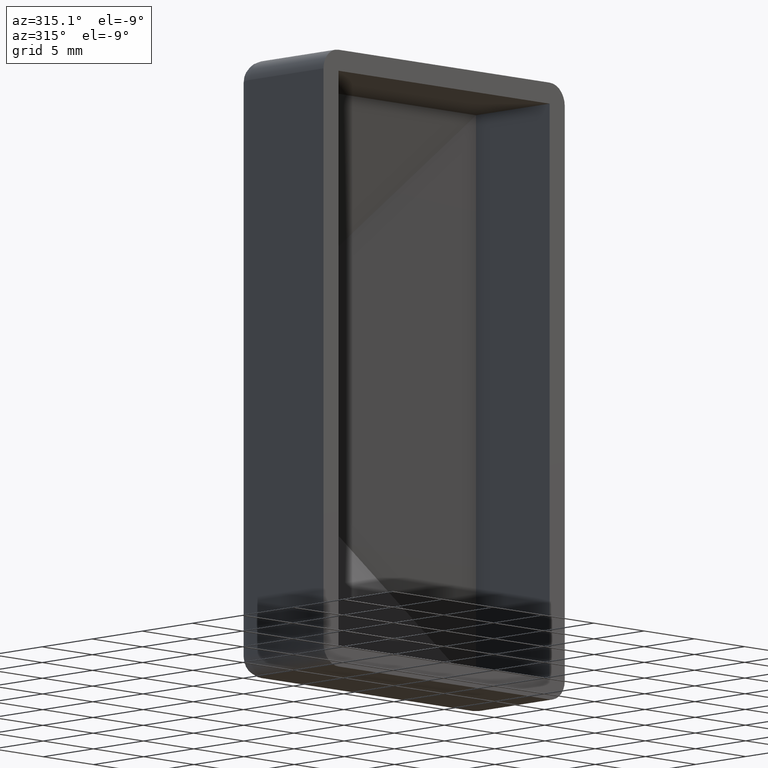
[diagram: clean part render]
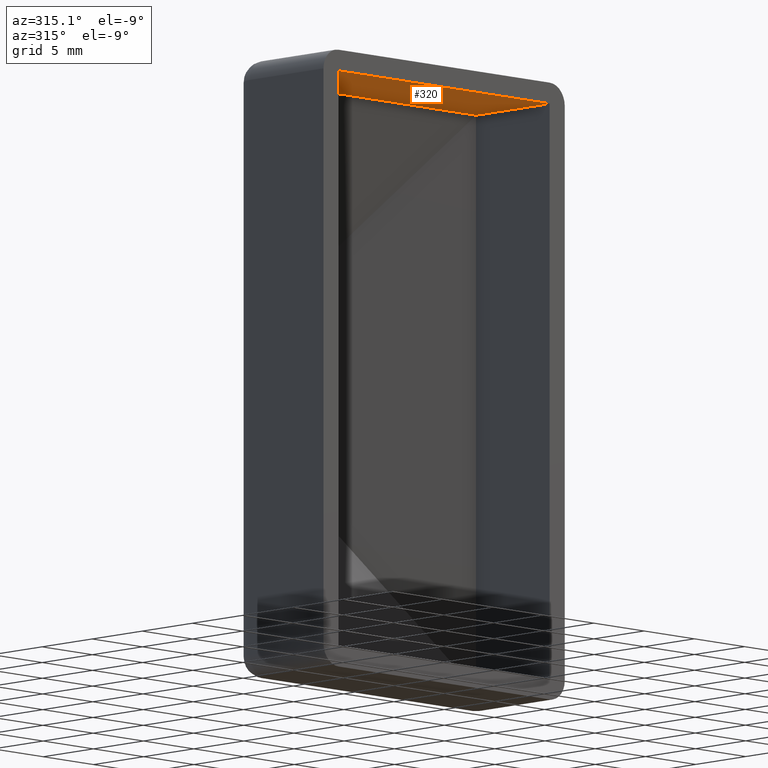
[diagram: same view with one face highlighted and labeled with its STEP entity id]
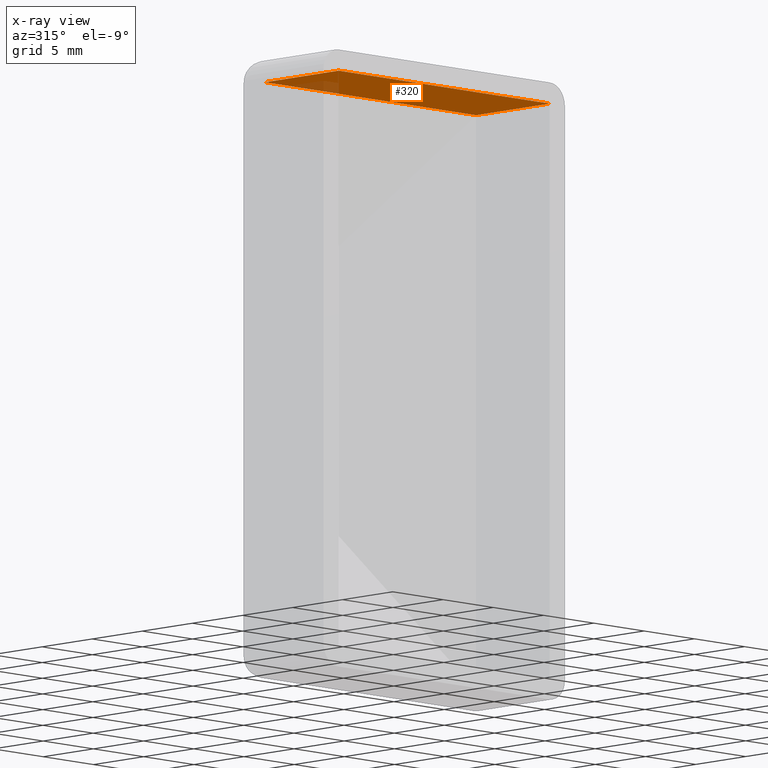
[diagram: x-ray of the same camera — body ghosted, the highlighted face saturated]
A machine part, auxiliary view. The second image highlights one B-rep face of the part: STEP entity #320.
The next image is the same camera in x-ray: the body ghosted, the highlighted face saturated — about 7% of this face is hidden behind the body in this view.
In plain terms, the highlighted planar face has unit normal (0, 0, -1).
Its self-contained STEP definition (entity closure, byte-faithful):
#86 = LINE ( 'NONE', #13620, #588 ) ;
#233 = EDGE_CURVE ( 'NONE', #3465, #5126, #9954, .T. ) ;
#234 = EDGE_LOOP ( 'NONE', ( #8360, #14140, #1478, #6485 ) ) ;
#320 = ADVANCED_FACE ( 'NONE', ( #5145 ), #9722, .T. ) ;
#588 = VECTOR ( 'NONE', #12452, 1000.000000000000000 ) ;
#870 = EDGE_CURVE ( 'NONE', #4273, #3465, #13061, .T. ) ;
#1114 = AXIS2_PLACEMENT_3D ( 'NONE', #3314, #8793, #4423 ) ;
#1478 = ORIENTED_EDGE ( 'NONE', *, *, #870, .T. ) ;
#1702 = CARTESIAN_POINT ( 'NONE',  ( 10.50000000000000000, 30.00000000000000000, 20.49999999999999645 ) ) ;
#1928 = VERTEX_POINT ( 'NONE', #3443 ) ;
#1935 = DIRECTION ( 'NONE',  ( 0.000000000000000000, -1.000000000000000000, 0.000000000000000000 ) ) ;
#3008 = CARTESIAN_POINT ( 'NONE',  ( -12.00000000000000533, 7.350000000000011191, 20.49999999999999645 ) ) ;
#3276 = VECTOR ( 'NONE', #1935, 1000.000000000000000 ) ;
#3314 = CARTESIAN_POINT ( 'NONE',  ( -12.00000000000000000, 30.00000000000000000, 20.49999999999999645 ) ) ;
#3443 = CARTESIAN_POINT ( 'NONE',  ( -10.50000000000000000, 0.000000000000000000, 20.49999999999999645 ) ) ;
#3465 = VERTEX_POINT ( 'NONE', #12321 ) ;
#4273 = VERTEX_POINT ( 'NONE', #8368 ) ;
#4423 = DIRECTION ( 'NONE',  ( -1.000000000000000000, 0.000000000000000000, -0.000000000000000000 ) ) ;
#5126 = VERTEX_POINT ( 'NONE', #11930 ) ;
#5145 = FACE_OUTER_BOUND ( 'NONE', #234, .T. ) ;
#5934 = VECTOR ( 'NONE', #8430, 1000.000000000000000 ) ;
#6485 = ORIENTED_EDGE ( 'NONE', *, *, #233, .T. ) ;
#6980 = EDGE_CURVE ( 'NONE', #1928, #5126, #13319, .T. ) ;
#8360 = ORIENTED_EDGE ( 'NONE', *, *, #6980, .F. ) ;
#8368 = CARTESIAN_POINT ( 'NONE',  ( -10.49999999999999467, 7.350000000000009415, 20.50000000000000000 ) ) ;
#8381 = CARTESIAN_POINT ( 'NONE',  ( -12.00000000000000000, 0.000000000000000000, 20.49999999999999645 ) ) ;
#8430 = DIRECTION ( 'NONE',  ( 1.000000000000000000, -0.000000000000000000, 0.000000000000000000 ) ) ;
#8793 = DIRECTION ( 'NONE',  ( 0.000000000000000000, 0.000000000000000000, -1.000000000000000000 ) ) ;
#9722 = PLANE ( 'NONE',  #1114 ) ;
#9954 = LINE ( 'NONE', #1702, #3276 ) ;
#10727 = DIRECTION ( 'NONE',  ( 1.000000000000000000, 0.000000000000000000, 0.000000000000000000 ) ) ;
#11239 = EDGE_CURVE ( 'NONE', #4273, #1928, #86, .T. ) ;
#11930 = CARTESIAN_POINT ( 'NONE',  ( 10.50000000000000000, 0.000000000000000000, 20.49999999999999645 ) ) ;
#12321 = CARTESIAN_POINT ( 'NONE',  ( 10.49999999999999645, 7.350000000000009415, 20.50000000000000355 ) ) ;
#12452 = DIRECTION ( 'NONE',  ( 0.000000000000000000, -1.000000000000000000, 0.000000000000000000 ) ) ;
#12705 = VECTOR ( 'NONE', #10727, 1000.000000000000000 ) ;
#13061 = LINE ( 'NONE', #3008, #12705 ) ;
#13319 = LINE ( 'NONE', #8381, #5934 ) ;
#13620 = CARTESIAN_POINT ( 'NONE',  ( -10.50000000000000000, 30.00000000000000000, 20.49999999999999645 ) ) ;
#14140 = ORIENTED_EDGE ( 'NONE', *, *, #11239, .F. ) ;